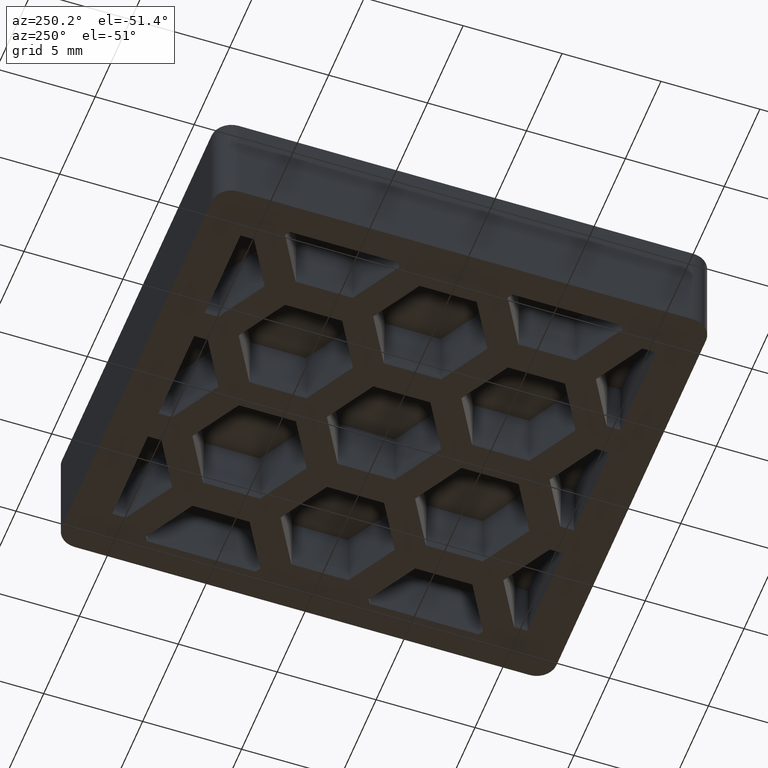
[diagram: clean part render]
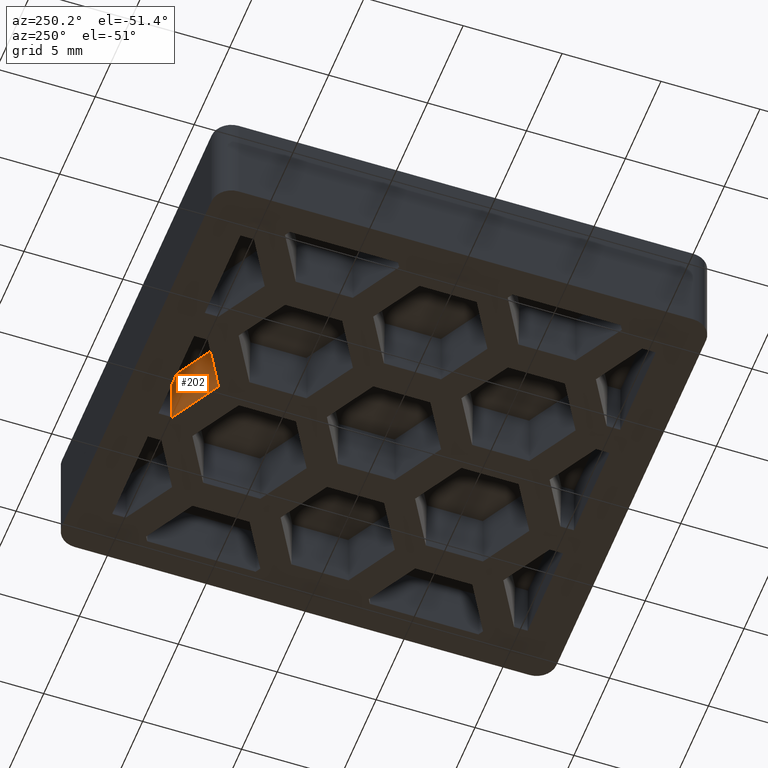
[diagram: same view with one face highlighted and labeled with its STEP entity id]
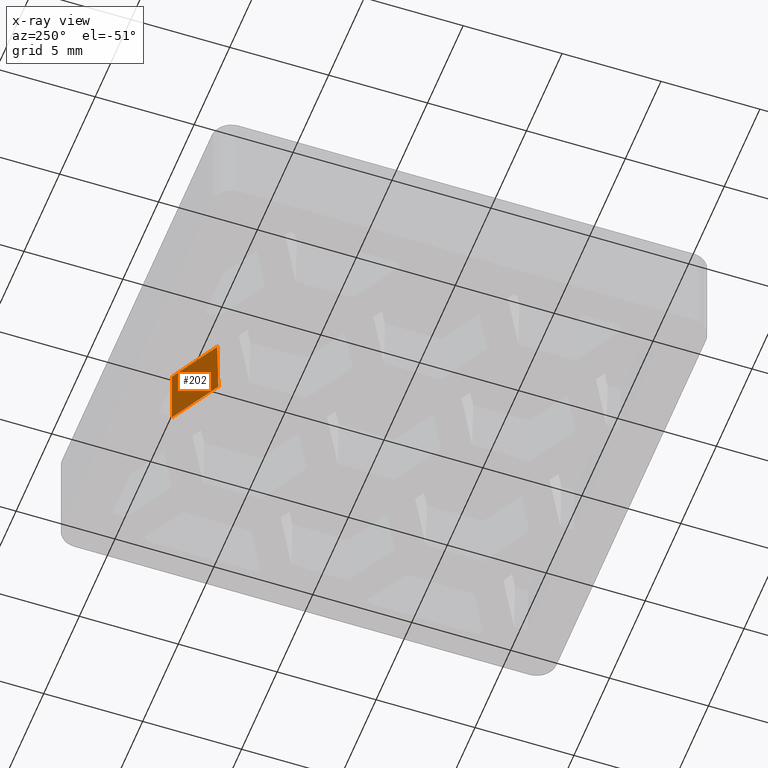
[diagram: x-ray of the same camera — body ghosted, the highlighted face saturated]
A machine part, auxiliary view. The second image highlights one B-rep face of the part: STEP entity #202.
The next image is the same camera in x-ray: the body ghosted, the highlighted face saturated — about 0% of this face is hidden behind the body in this view.
In plain terms, the highlighted planar face has unit normal (0.4999, -0.8659, 0.0175).
Its self-contained STEP definition (entity closure, byte-faithful):
#202 = ADVANCED_FACE( '', ( #514 ), #515, .F. );
#514 = FACE_OUTER_BOUND( '', #860, .T. );
#515 = PLANE( '', #861 );
#860 = EDGE_LOOP( '', ( #1976, #1977, #1978, #1979 ) );
#861 = AXIS2_PLACEMENT_3D( '', #1980, #1981, #1982 );
#1976 = ORIENTED_EDGE( '', *, *, #2573, .T. );
#1977 = ORIENTED_EDGE( '', *, *, #2226, .T. );
#1978 = ORIENTED_EDGE( '', *, *, #2574, .F. );
#1979 = ORIENTED_EDGE( '', *, *, #2464, .F. );
#1980 = CARTESIAN_POINT( '', ( -2.37485699790260, 7.00012432702593, -4.28619836421128E-016 ) );
#1981 = DIRECTION( '', ( 0.499923847578196, -0.865893503920754, 0.0174524064372836 ) );
#1982 = DIRECTION( '', ( 0.866025403784439, 0.500000000000000, -3.15746370548615E-017 ) );
#2226 = EDGE_CURVE( '', #2645, #2643, #2646, .T. );
#2464 = EDGE_CURVE( '', #3089, #3091, #3092, .T. );
#2573 = EDGE_CURVE( '', #3089, #2645, #3229, .T. );
#2574 = EDGE_CURVE( '', #3091, #2643, #3230, .T. );
#2643 = VERTEX_POINT( '', #3328 );
#2645 = VERTEX_POINT( '', #3331 );
#2646 = LINE( '', #3332, #3333 );
#3089 = VERTEX_POINT( '', #4000 );
#3091 = VERTEX_POINT( '', #4003 );
#3092 = LINE( '', #4004, #4005 );
#3229 = LINE( '', #4250, #4251 );
#3230 = LINE( '', #4252, #4253 );
#3328 = CARTESIAN_POINT( '', ( -4.33680868994202E-016, 8.37124865405187, -5.12574214558947E-016 ) );
#3331 = CARTESIAN_POINT( '', ( 2.50000000000000, 9.81462432702593, -6.00952565562782E-016 ) );
#3332 = CARTESIAN_POINT( '', ( 2.50000000000000, 9.81462432702594, -6.00952565562782E-016 ) );
#3333 = VECTOR( '', #4346, 1000.00000000000 );
#4000 = CARTESIAN_POINT( '', ( 2.44763480521536, 9.84485738633102, 3.00000000000000 ) );
#4003 = CARTESIAN_POINT( '', ( 0.000000000000000, 8.43171477266204, 3.00000000000000 ) );
#4004 = CARTESIAN_POINT( '', ( -8.10440622542660, 3.75263365678992, 3.00000000000000 ) );
#4005 = VECTOR( '', #4608, 1000.00000000000 );
#4250 = CARTESIAN_POINT( '', ( 2.50197955313088, 9.81348143149294, -0.113408522914319 ) );
#4251 = VECTOR( '', #4717, 1000.00000000000 );
#4252 = CARTESIAN_POINT( '', ( 0.000000000000000, 8.37069187598524, -0.0276242999928752 ) );
#4253 = VECTOR( '', #4718, 1000.00000000000 );
#4346 = DIRECTION( '', ( -0.866025403784439, -0.500000000000000, 3.06151588455594E-017 ) );
#4608 = DIRECTION( '', ( -0.866025403784439, -0.500000000000000, 3.06151588455594E-017 ) );
#4717 = DIRECTION( '', ( 0.0174515205435363, -0.0100756400835790, -0.999796942337605 ) );
#4718 = DIRECTION( '', ( 5.50935137850124E-018, -0.0201512801671580, -0.999796942337605 ) );